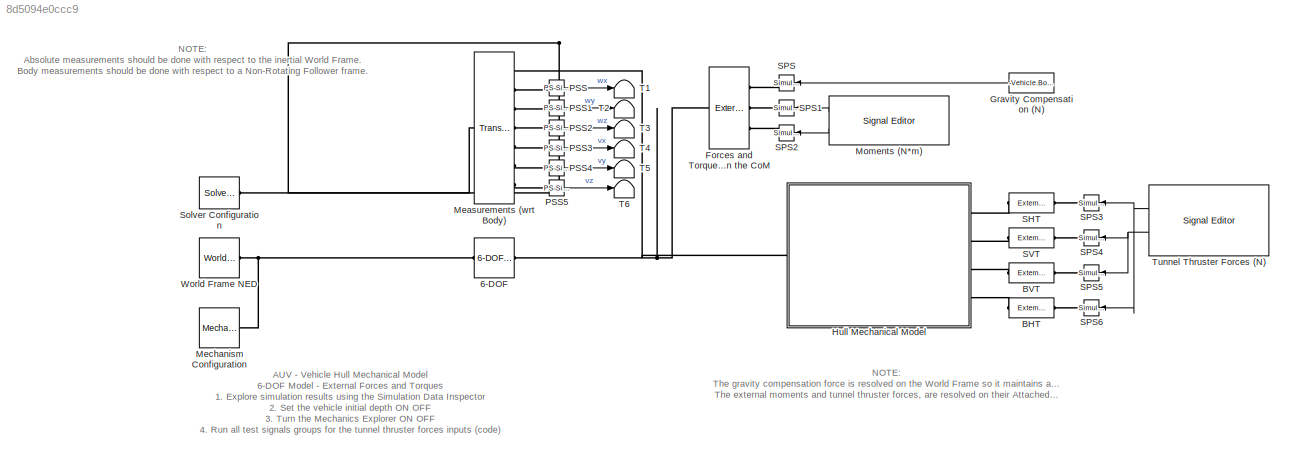
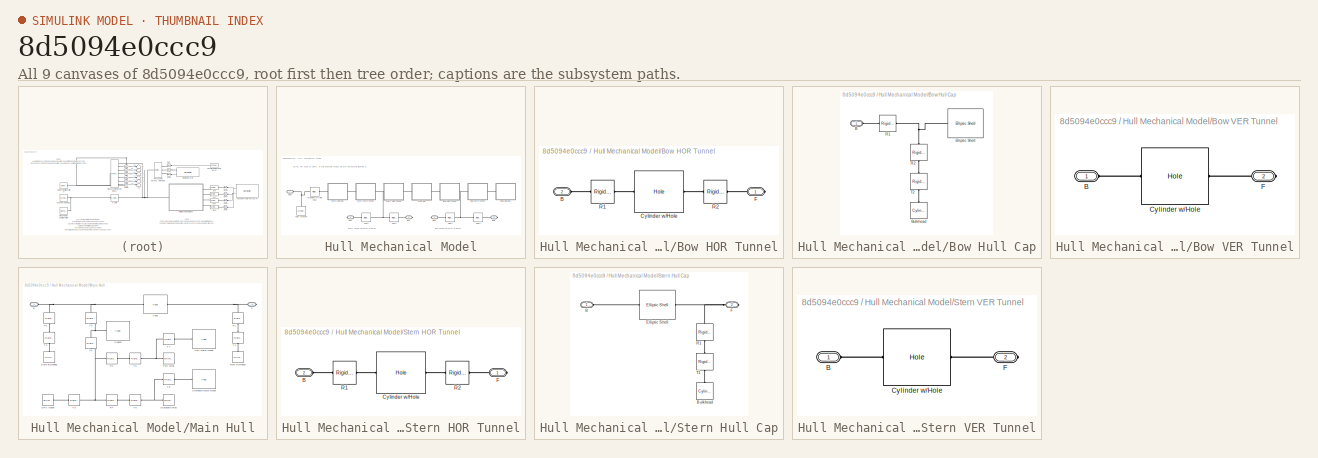
[diagram: thumbnail index - all 9 canvases of the model, root first then tree order]
MODEL slx_8d5094e0ccc9
KIND model
CONFIG AbsTol = auto
CONFIG EnableMultiTasking = on
CONFIG FixedStep = auto
CONFIG MaxStep = 0.01
CONFIG MinStep = auto
CONFIG PreLoadFcn = AUV_VehicleParameters;
CONFIG RelTol = 1e-3
CONFIG SampleTimeConstraint = Unconstrained
CONFIG Solver = ode23t
CONFIG SolverName = ode23t
CONFIG StartTime = 0.0
CONFIG StopTime = 20
BLOCK [Reference] 6-DOF  REF=sm_lib/Joints/6-DOF Joint
  AttributesFormatString = Initial Depth: %<PzPositionTargetSpecify>
  Ports = [0, 0, 0, 0, 0, 1, 1]
  SourceBlock = sm_lib/Joints/6-DOF Joint
  SourceProductBaseCode = MS
  SourceType = 6-DOF Joint
BLOCK [Reference] BHT  REF=sm_lib/Forces and
Torques/External Force
and Torque
  Ports = [0, 0, 0, 0, 0, 1, 1]
  SourceBlock = sm_lib/Forces and\nTorques/External Force\nand Torque
  SourceProductBaseCode = MS
  SourceType = External Force\nand Torque
BLOCK [Reference] BVT  REF=sm_lib/Forces and
Torques/External Force
and Torque
  Ports = [0, 0, 0, 0, 0, 1, 1]
  SourceBlock = sm_lib/Forces and\nTorques/External Force\nand Torque
  SourceProductBaseCode = MS
  SourceType = External Force\nand Torque
BLOCK [Reference] Forces and Torques on the CoM  REF=sm_lib/Forces and
Torques/External Force
and Torque
  Ports = [0, 0, 0, 0, 0, 3, 1]
  SourceBlock = sm_lib/Forces and\nTorques/External Force\nand Torque
  SourceProductBaseCode = MS
  SourceType = External Force\nand Torque
BLOCK [Constant] Gravity Compensation (N)
  Value = -Vehicle.Body.Hull.mass*Environment.gravity
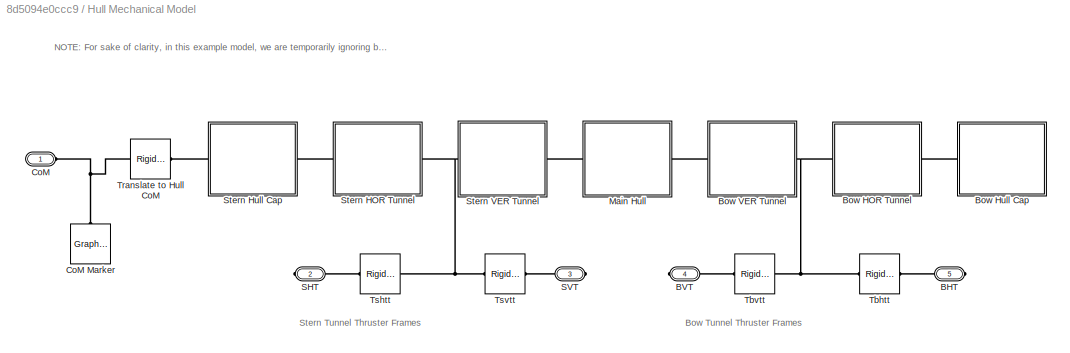
BLOCK [SubSystem] Hull Mechanical Model
  Ports = [0, 0, 0, 0, 0, 1, 4]
  RequestExecContextInheritance = off
BLOCK [PMIOPort] Hull Mechanical Model/BHT
  Port = 5
  Side = Right
BLOCK [PMIOPort] Hull Mechanical Model/BVT
  Port = 4
  Side = Right
BLOCK [SubSystem] Hull Mechanical Model/Bow HOR Tunnel
  Ports = [0, 0, 0, 0, 0, 1, 1]
  RequestExecContextInheritance = off
BLOCK [PMIOPort] Hull Mechanical Model/Bow HOR Tunnel/B
  Port = 2
  Side = Left
BLOCK [Reference] Hull Mechanical Model/Bow HOR Tunnel/Cylinder w//Hole  REF=AUVCustomPrimitives_Lib/Cylinder w//Hole
  Ports = [0, 0, 0, 0, 0, 1, 1]
  SourceBlock = AUVCustomPrimitives_Lib/Cylinder w//Hole
  SourceType = Cylinder with Hole
BLOCK [PMIOPort] Hull Mechanical Model/Bow HOR Tunnel/F
  Side = Right
BLOCK [Reference] Hull Mechanical Model/Bow HOR Tunnel/R1  REF=sm_lib/Frames and
Transforms/Rigid
Transform
  Ports = [0, 0, 0, 0, 0, 1, 1]
  SourceBlock = sm_lib/Frames and\nTransforms/Rigid\nTransform
  SourceProductBaseCode = MS
  SourceType = Rigid\nTransform
BLOCK [Reference] Hull Mechanical Model/Bow HOR Tunnel/R2  REF=sm_lib/Frames and
Transforms/Rigid
Transform
  Ports = [0, 0, 0, 0, 0, 1, 1]
  SourceBlock = sm_lib/Frames and\nTransforms/Rigid\nTransform
  SourceProductBaseCode = MS
  SourceType = Rigid\nTransform
BLOCK [SubSystem] Hull Mechanical Model/Bow Hull Cap
  Ports = [0, 0, 0, 0, 0, 1]
  RequestExecContextInheritance = off
BLOCK [PMIOPort] Hull Mechanical Model/Bow Hull Cap/B
  Side = Left
BLOCK [Reference] Hull Mechanical Model/Bow Hull Cap/Bulkhead  REF=sm_lib/Body Elements/Cylindrical Solid
  NameLocation = right
  Ports = [0, 0, 0, 0, 0, 0, 1]
  SourceBlock = sm_lib/Body Elements/Cylindrical Solid
  SourceProductBaseCode = MS
  SourceType = Cylindrical Solid
BLOCK [Reference] Hull Mechanical Model/Bow Hull Cap/Elliptic Shell  REF=AUVCustomPrimitives_Lib/Elliptic Shell
  Ports = [0, 0, 0, 0, 0, 1, 1]
  SourceBlock = AUVCustomPrimitives_Lib/Elliptic Shell
  SourceType = Elliptic Shell
BLOCK [Reference] Hull Mechanical Model/Bow Hull Cap/R1  REF=sm_lib/Frames and
Transforms/Rigid
Transform
  Ports = [0, 0, 0, 0, 0, 1, 1]
  SourceBlock = sm_lib/Frames and\nTransforms/Rigid\nTransform
  SourceProductBaseCode = MS
  SourceType = Rigid\nTransform
BLOCK [Reference] Hull Mechanical Model/Bow Hull Cap/R2  REF=sm_lib/Frames and
Transforms/Rigid
Transform
  NameLocation = right
  Ports = [0, 0, 0, 0, 0, 1, 1]
  SourceBlock = sm_lib/Frames and\nTransforms/Rigid\nTransform
  SourceProductBaseCode = MS
  SourceType = Rigid\nTransform
BLOCK [Reference] Hull Mechanical Model/Bow Hull Cap/T2  REF=sm_lib/Frames and
Transforms/Rigid
Transform
  NameLocation = right
  Ports = [0, 0, 0, 0, 0, 1, 1]
  SourceBlock = sm_lib/Frames and\nTransforms/Rigid\nTransform
  SourceProductBaseCode = MS
  SourceType = Rigid\nTransform
BLOCK [SubSystem] Hull Mechanical Model/Bow VER Tunnel
  Ports = [0, 0, 0, 0, 0, 1, 1]
  RequestExecContextInheritance = off
BLOCK [PMIOPort] Hull Mechanical Model/Bow VER Tunnel/B
  Side = Left
BLOCK [Reference] Hull Mechanical Model/Bow VER Tunnel/Cylinder w//Hole  REF=AUVCustomPrimitives_Lib/Cylinder w//Hole
  Ports = [0, 0, 0, 0, 0, 1, 1]
  SourceBlock = AUVCustomPrimitives_Lib/Cylinder w//Hole
  SourceType = Cylinder with Hole
BLOCK [PMIOPort] Hull Mechanical Model/Bow VER Tunnel/F
  Port = 2
  Side = Right
BLOCK [PMIOPort] Hull Mechanical Model/CoM
  Side = Left
BLOCK [Reference] Hull Mechanical Model/CoM Marker  REF=sm_lib/Body Elements/Graphic
  NameLocation = right
  Ports = [0, 0, 0, 0, 0, 0, 1]
  SourceBlock = sm_lib/Body Elements/Graphic
  SourceProductBaseCode = MS
  SourceType = Graphic
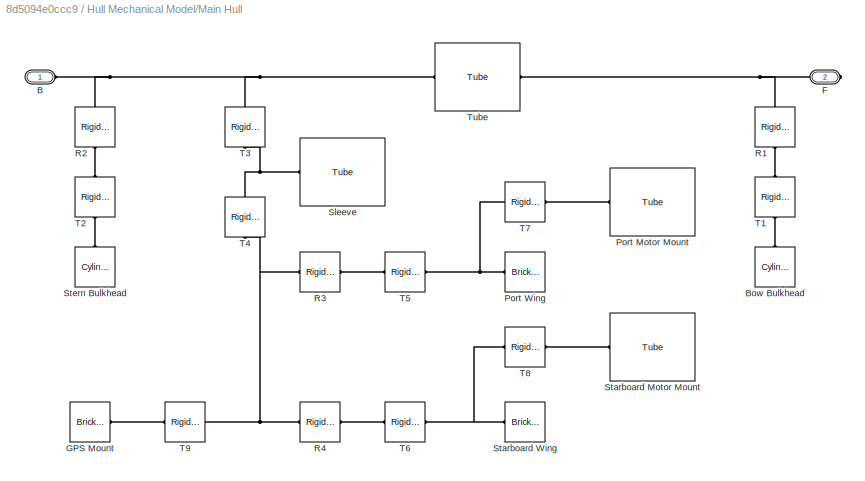
BLOCK [SubSystem] Hull Mechanical Model/Main Hull
  Ports = [0, 0, 0, 0, 0, 1, 1]
  RequestExecContextInheritance = off
BLOCK [PMIOPort] Hull Mechanical Model/Main Hull/B
  Side = Left
BLOCK [Reference] Hull Mechanical Model/Main Hull/Bow Bulkhead  REF=sm_lib/Body Elements/Cylindrical Solid
  NameLocation = right
  Ports = [0, 0, 0, 0, 0, 0, 1]
  SourceBlock = sm_lib/Body Elements/Cylindrical Solid
  SourceProductBaseCode = MS
  SourceType = Cylindrical Solid
BLOCK [PMIOPort] Hull Mechanical Model/Main Hull/F
  Port = 2
  Side = Right
BLOCK [Reference] Hull Mechanical Model/Main Hull/GPS Mount  REF=sm_lib/Body Elements/Brick Solid
  Ports = [0, 0, 0, 0, 0, 0, 1]
  SourceBlock = sm_lib/Body Elements/Brick Solid
  SourceProductBaseCode = MS
  SourceType = Brick Solid
BLOCK [Reference] Hull Mechanical Model/Main Hull/Port Motor Mount  REF=AUVCustomPrimitives_Lib/Tube
  Ports = [0, 0, 0, 0, 0, 1, 1]
  SourceBlock = AUVCustomPrimitives_Lib/Tube
  SourceType = Tube
BLOCK [Reference] Hull Mechanical Model/Main Hull/Port Wing  REF=sm_lib/Body Elements/Brick Solid
  Ports = [0, 0, 0, 0, 0, 0, 1]
  SourceBlock = sm_lib/Body Elements/Brick Solid
  SourceProductBaseCode = MS
  SourceType = Brick Solid
BLOCK [Reference] Hull Mechanical Model/Main Hull/R1  REF=sm_lib/Frames and
Transforms/Rigid
Transform
  NameLocation = right
  Ports = [0, 0, 0, 0, 0, 1, 1]
  SourceBlock = sm_lib/Frames and\nTransforms/Rigid\nTransform
  SourceProductBaseCode = MS
  SourceType = Rigid\nTransform
BLOCK [Reference] Hull Mechanical Model/Main Hull/R2  REF=sm_lib/Frames and
Transforms/Rigid
Transform
  NameLocation = right
  Ports = [0, 0, 0, 0, 0, 1, 1]
  SourceBlock = sm_lib/Frames and\nTransforms/Rigid\nTransform
  SourceProductBaseCode = MS
  SourceType = Rigid\nTransform
BLOCK [Reference] Hull Mechanical Model/Main Hull/R3  REF=sm_lib/Frames and
Transforms/Rigid
Transform
  Ports = [0, 0, 0, 0, 0, 1, 1]
  SourceBlock = sm_lib/Frames and\nTransforms/Rigid\nTransform
  SourceProductBaseCode = MS
  SourceType = Rigid\nTransform
BLOCK [Reference] Hull Mechanical Model/Main Hull/R4  REF=sm_lib/Frames and
Transforms/Rigid
Transform
  Ports = [0, 0, 0, 0, 0, 1, 1]
  SourceBlock = sm_lib/Frames and\nTransforms/Rigid\nTransform
  SourceProductBaseCode = MS
  SourceType = Rigid\nTransform
BLOCK [Reference] Hull Mechanical Model/Main Hull/Sleeve  REF=AUVCustomPrimitives_Lib/Tube
  Ports = [0, 0, 0, 0, 0, 1, 1]
  SourceBlock = AUVCustomPrimitives_Lib/Tube
  SourceType = Tube
BLOCK [Reference] Hull Mechanical Model/Main Hull/Starboard Motor Mount  REF=AUVCustomPrimitives_Lib/Tube
  Ports = [0, 0, 0, 0, 0, 1, 1]
  SourceBlock = AUVCustomPrimitives_Lib/Tube
  SourceType = Tube
BLOCK [Reference] Hull Mechanical Model/Main Hull/Starboard Wing  REF=sm_lib/Body Elements/Brick Solid
  Ports = [0, 0, 0, 0, 0, 0, 1]
  SourceBlock = sm_lib/Body Elements/Brick Solid
  SourceProductBaseCode = MS
  SourceType = Brick Solid
BLOCK [Reference] Hull Mechanical Model/Main Hull/Stern Bulkhead  REF=sm_lib/Body Elements/Cylindrical Solid
  NameLocation = right
  Ports = [0, 0, 0, 0, 0, 0, 1]
  SourceBlock = sm_lib/Body Elements/Cylindrical Solid
  SourceProductBaseCode = MS
  SourceType = Cylindrical Solid
BLOCK [Reference] Hull Mechanical Model/Main Hull/T1  REF=sm_lib/Frames and
Transforms/Rigid
Transform
  NameLocation = right
  Ports = [0, 0, 0, 0, 0, 1, 1]
  SourceBlock = sm_lib/Frames and\nTransforms/Rigid\nTransform
  SourceProductBaseCode = MS
  SourceType = Rigid\nTransform
BLOCK [Reference] Hull Mechanical Model/Main Hull/T2  REF=sm_lib/Frames and
Transforms/Rigid
Transform
  NameLocation = right
  Ports = [0, 0, 0, 0, 0, 1, 1]
  SourceBlock = sm_lib/Frames and\nTransforms/Rigid\nTransform
  SourceProductBaseCode = MS
  SourceType = Rigid\nTransform
BLOCK [Reference] Hull Mechanical Model/Main Hull/T3  REF=sm_lib/Frames and
Transforms/Rigid
Transform
  NameLocation = left
  Ports = [0, 0, 0, 0, 0, 1, 1]
  SourceBlock = sm_lib/Frames and\nTransforms/Rigid\nTransform
  SourceProductBaseCode = MS
  SourceType = Rigid\nTransform
BLOCK [Reference] Hull Mechanical Model/Main Hull/T4  REF=sm_lib/Frames and
Transforms/Rigid
Transform
  NameLocation = left
  Ports = [0, 0, 0, 0, 0, 1, 1]
  SourceBlock = sm_lib/Frames and\nTransforms/Rigid\nTransform
  SourceProductBaseCode = MS
  SourceType = Rigid\nTransform
BLOCK [Reference] Hull Mechanical Model/Main Hull/T5  REF=sm_lib/Frames and
Transforms/Rigid
Transform
  Ports = [0, 0, 0, 0, 0, 1, 1]
  SourceBlock = sm_lib/Frames and\nTransforms/Rigid\nTransform
  SourceProductBaseCode = MS
  SourceType = Rigid\nTransform
BLOCK [Reference] Hull Mechanical Model/Main Hull/T6  REF=sm_lib/Frames and
Transforms/Rigid
Transform
  Ports = [0, 0, 0, 0, 0, 1, 1]
  SourceBlock = sm_lib/Frames and\nTransforms/Rigid\nTransform
  SourceProductBaseCode = MS
  SourceType = Rigid\nTransform
BLOCK [Reference] Hull Mechanical Model/Main Hull/T7  REF=sm_lib/Frames and
Transforms/Rigid
Transform
  Ports = [0, 0, 0, 0, 0, 1, 1]
  SourceBlock = sm_lib/Frames and\nTransforms/Rigid\nTransform
  SourceProductBaseCode = MS
  SourceType = Rigid\nTransform
BLOCK [Reference] Hull Mechanical Model/Main Hull/T8  REF=sm_lib/Frames and
Transforms/Rigid
Transform
  Ports = [0, 0, 0, 0, 0, 1, 1]
  SourceBlock = sm_lib/Frames and\nTransforms/Rigid\nTransform
  SourceProductBaseCode = MS
  SourceType = Rigid\nTransform
BLOCK [Reference] Hull Mechanical Model/Main Hull/T9  REF=sm_lib/Frames and
Transforms/Rigid
Transform
  Ports = [0, 0, 0, 0, 0, 1, 1]
  SourceBlock = sm_lib/Frames and\nTransforms/Rigid\nTransform
  SourceProductBaseCode = MS
  SourceType = Rigid\nTransform
BLOCK [Reference] Hull Mechanical Model/Main Hull/Tube  REF=AUVCustomPrimitives_Lib/Tube
  Ports = [0, 0, 0, 0, 0, 1, 1]
  SourceBlock = AUVCustomPrimitives_Lib/Tube
  SourceType = Tube
BLOCK [PMIOPort] Hull Mechanical Model/SHT
  Port = 2
  Side = Right
BLOCK [PMIOPort] Hull Mechanical Model/SVT
  Port = 3
  Side = Right
BLOCK [SubSystem] Hull Mechanical Model/Stern HOR Tunnel
  Ports = [0, 0, 0, 0, 0, 1, 1]
  RequestExecContextInheritance = off
BLOCK [PMIOPort] Hull Mechanical Model/Stern HOR Tunnel/B
  Port = 2
  Side = Left
BLOCK [Reference] Hull Mechanical Model/Stern HOR Tunnel/Cylinder w//Hole  REF=AUVCustomPrimitives_Lib/Cylinder w//Hole
  Ports = [0, 0, 0, 0, 0, 1, 1]
  SourceBlock = AUVCustomPrimitives_Lib/Cylinder w//Hole
  SourceType = Cylinder with Hole
BLOCK [PMIOPort] Hull Mechanical Model/Stern HOR Tunnel/F
  Side = Right
BLOCK [Reference] Hull Mechanical Model/Stern HOR Tunnel/R1  REF=sm_lib/Frames and
Transforms/Rigid
Transform
  Ports = [0, 0, 0, 0, 0, 1, 1]
  SourceBlock = sm_lib/Frames and\nTransforms/Rigid\nTransform
  SourceProductBaseCode = MS
  SourceType = Rigid\nTransform
BLOCK [Reference] Hull Mechanical Model/Stern HOR Tunnel/R2  REF=sm_lib/Frames and
Transforms/Rigid
Transform
  Ports = [0, 0, 0, 0, 0, 1, 1]
  SourceBlock = sm_lib/Frames and\nTransforms/Rigid\nTransform
  SourceProductBaseCode = MS
  SourceType = Rigid\nTransform
BLOCK [SubSystem] Hull Mechanical Model/Stern Hull Cap
  Ports = [0, 0, 0, 0, 0, 1, 1]
  RequestExecContextInheritance = off
BLOCK [PMIOPort] Hull Mechanical Model/Stern Hull Cap/B
  Side = Left
BLOCK [Reference] Hull Mechanical Model/Stern Hull Cap/Bulkhead  REF=sm_lib/Body Elements/Cylindrical Solid
  NameLocation = right
  Ports = [0, 0, 0, 0, 0, 0, 1]
  SourceBlock = sm_lib/Body Elements/Cylindrical Solid
  SourceProductBaseCode = MS
  SourceType = Cylindrical Solid
BLOCK [Reference] Hull Mechanical Model/Stern Hull Cap/Elliptic Shell  REF=AUVCustomPrimitives_Lib/Elliptic Shell
  Ports = [0, 0, 0, 0, 0, 1, 1]
  SourceBlock = AUVCustomPrimitives_Lib/Elliptic Shell
  SourceType = Elliptic Shell
BLOCK [PMIOPort] Hull Mechanical Model/Stern Hull Cap/F
  Port = 2
  Side = Right
BLOCK [Reference] Hull Mechanical Model/Stern Hull Cap/R1  REF=sm_lib/Frames and
Transforms/Rigid
Transform
  NameLocation = right
  Ports = [0, 0, 0, 0, 0, 1, 1]
  SourceBlock = sm_lib/Frames and\nTransforms/Rigid\nTransform
  SourceProductBaseCode = MS
  SourceType = Rigid\nTransform
BLOCK [Reference] Hull Mechanical Model/Stern Hull Cap/T1  REF=sm_lib/Frames and
Transforms/Rigid
Transform
  NameLocation = right
  Ports = [0, 0, 0, 0, 0, 1, 1]
  SourceBlock = sm_lib/Frames and\nTransforms/Rigid\nTransform
  SourceProductBaseCode = MS
  SourceType = Rigid\nTransform
BLOCK [SubSystem] Hull Mechanical Model/Stern VER Tunnel
  Ports = [0, 0, 0, 0, 0, 1, 1]
  RequestExecContextInheritance = off
BLOCK [PMIOPort] Hull Mechanical Model/Stern VER Tunnel/B
  Side = Left
BLOCK [Reference] Hull Mechanical Model/Stern VER Tunnel/Cylinder w//Hole  REF=AUVCustomPrimitives_Lib/Cylinder w//Hole
  Ports = [0, 0, 0, 0, 0, 1, 1]
  SourceBlock = AUVCustomPrimitives_Lib/Cylinder w//Hole
  SourceType = Cylinder with Hole
BLOCK [PMIOPort] Hull Mechanical Model/Stern VER Tunnel/F
  Port = 2
  Side = Right
BLOCK [Reference] Hull Mechanical Model/Tbhtt  REF=sm_lib/Frames and
Transforms/Rigid
Transform
  Ports = [0, 0, 0, 0, 0, 1, 1]
  SourceBlock = sm_lib/Frames and\nTransforms/Rigid\nTransform
  SourceProductBaseCode = MS
  SourceType = Rigid\nTransform
BLOCK [Reference] Hull Mechanical Model/Tbvtt  REF=sm_lib/Frames and
Transforms/Rigid
Transform
  Ports = [0, 0, 0, 0, 0, 1, 1]
  SourceBlock = sm_lib/Frames and\nTransforms/Rigid\nTransform
  SourceProductBaseCode = MS
  SourceType = Rigid\nTransform
BLOCK [Reference] Hull Mechanical Model/Translate to Hull CoM  REF=sm_lib/Frames and
Transforms/Rigid
Transform
  Ports = [0, 0, 0, 0, 0, 1, 1]
  SourceBlock = sm_lib/Frames and\nTransforms/Rigid\nTransform
  SourceProductBaseCode = MS
  SourceType = Rigid\nTransform
BLOCK [Reference] Hull Mechanical Model/Tshtt  REF=sm_lib/Frames and
Transforms/Rigid
Transform
  Ports = [0, 0, 0, 0, 0, 1, 1]
  SourceBlock = sm_lib/Frames and\nTransforms/Rigid\nTransform
  SourceProductBaseCode = MS
  SourceType = Rigid\nTransform
BLOCK [Reference] Hull Mechanical Model/Tsvtt  REF=sm_lib/Frames and
Transforms/Rigid
Transform
  Ports = [0, 0, 0, 0, 0, 1, 1]
  SourceBlock = sm_lib/Frames and\nTransforms/Rigid\nTransform
  SourceProductBaseCode = MS
  SourceType = Rigid\nTransform
BLOCK [Reference] Measurements (wrt Body)  REF=sm_lib/Frames and
Transforms/Transform
Sensor
  Ports = [0, 0, 0, 0, 0, 1, 7]
  SourceBlock = sm_lib/Frames and\nTransforms/Transform\nSensor
  SourceProductBaseCode = MS
  SourceType = Transform\nSensor
BLOCK [Reference] Mechanism Configuration  REF=sm_lib/Utilities/Mechanism
Configuration
  Ports = [0, 0, 0, 0, 0, 0, 1]
  SourceBlock = sm_lib/Utilities/Mechanism\nConfiguration
  SourceProductBaseCode = MS
  SourceType = Mechanism\nConfiguration
BLOCK [Reference] Moments (N*m)  REF=SignalEditorBlockLib/Signal Editor
  Commented = on
  Ports = [0, 2]
  SourceBlock = SignalEditorBlockLib/Signal Editor
  SourceProductBaseCode = SL
  SourceType = SignalEditor
  UserDataPersistent = on
BLOCK [Reference] PSS  REF=nesl_utility/PS-Simulink
Converter
  Ports = [0, 1, 0, 0, 0, 1]
  SourceBlock = nesl_utility/PS-Simulink\nConverter
  SourceProductBaseCode = SS
  SourceType = PS-Simulink\nConverter
BLOCK [Reference] PSS1  REF=nesl_utility/PS-Simulink
Converter
  Ports = [0, 1, 0, 0, 0, 1]
  SourceBlock = nesl_utility/PS-Simulink\nConverter
  SourceProductBaseCode = SS
  SourceType = PS-Simulink\nConverter
BLOCK [Reference] PSS2  REF=nesl_utility/PS-Simulink
Converter
  Ports = [0, 1, 0, 0, 0, 1]
  SourceBlock = nesl_utility/PS-Simulink\nConverter
  SourceProductBaseCode = SS
  SourceType = PS-Simulink\nConverter
BLOCK [Reference] PSS3  REF=nesl_utility/PS-Simulink
Converter
  Ports = [0, 1, 0, 0, 0, 1]
  SourceBlock = nesl_utility/PS-Simulink\nConverter
  SourceProductBaseCode = SS
  SourceType = PS-Simulink\nConverter
BLOCK [Reference] PSS4  REF=nesl_utility/PS-Simulink
Converter
  Ports = [0, 1, 0, 0, 0, 1]
  SourceBlock = nesl_utility/PS-Simulink\nConverter
  SourceProductBaseCode = SS
  SourceType = PS-Simulink\nConverter
BLOCK [Reference] PSS5  REF=nesl_utility/PS-Simulink
Converter
  Ports = [0, 1, 0, 0, 0, 1]
  SourceBlock = nesl_utility/PS-Simulink\nConverter
  SourceProductBaseCode = SS
  SourceType = PS-Simulink\nConverter
BLOCK [Reference] SHT  REF=sm_lib/Forces and
Torques/External Force
and Torque
  Ports = [0, 0, 0, 0, 0, 1, 1]
  SourceBlock = sm_lib/Forces and\nTorques/External Force\nand Torque
  SourceProductBaseCode = MS
  SourceType = External Force\nand Torque
BLOCK [Reference] SPS  REF=nesl_utility/Simulink-PS
Converter
  Ports = [1, 0, 0, 0, 0, 0, 1]
  SourceBlock = nesl_utility/Simulink-PS\nConverter
  SourceProductBaseCode = SS
  SourceType = Simulink-PS\nConverter
BLOCK [Reference] SPS1  REF=nesl_utility/Simulink-PS
Converter
  Ports = [1, 0, 0, 0, 0, 0, 1]
  SourceBlock = nesl_utility/Simulink-PS\nConverter
  SourceProductBaseCode = SS
  SourceType = Simulink-PS\nConverter
BLOCK [Reference] SPS2  REF=nesl_utility/Simulink-PS
Converter
  Ports = [1, 0, 0, 0, 0, 0, 1]
  SourceBlock = nesl_utility/Simulink-PS\nConverter
  SourceProductBaseCode = SS
  SourceType = Simulink-PS\nConverter
BLOCK [Reference] SPS3  REF=nesl_utility/Simulink-PS
Converter
  Ports = [1, 0, 0, 0, 0, 0, 1]
  SourceBlock = nesl_utility/Simulink-PS\nConverter
  SourceProductBaseCode = SS
  SourceType = Simulink-PS\nConverter
BLOCK [Reference] SPS4  REF=nesl_utility/Simulink-PS
Converter
  Ports = [1, 0, 0, 0, 0, 0, 1]
  SourceBlock = nesl_utility/Simulink-PS\nConverter
  SourceProductBaseCode = SS
  SourceType = Simulink-PS\nConverter
BLOCK [Reference] SPS5  REF=nesl_utility/Simulink-PS
Converter
  Ports = [1, 0, 0, 0, 0, 0, 1]
  SourceBlock = nesl_utility/Simulink-PS\nConverter
  SourceProductBaseCode = SS
  SourceType = Simulink-PS\nConverter
BLOCK [Reference] SPS6  REF=nesl_utility/Simulink-PS
Converter
  Ports = [1, 0, 0, 0, 0, 0, 1]
  SourceBlock = nesl_utility/Simulink-PS\nConverter
  SourceProductBaseCode = SS
  SourceType = Simulink-PS\nConverter
BLOCK [Reference] SVT  REF=sm_lib/Forces and
Torques/External Force
and Torque
  Ports = [0, 0, 0, 0, 0, 1, 1]
  SourceBlock = sm_lib/Forces and\nTorques/External Force\nand Torque
  SourceProductBaseCode = MS
  SourceType = External Force\nand Torque
BLOCK [Reference] Solver Configuration  REF=nesl_utility/Solver
Configuration
  Ports = [0, 0, 0, 0, 0, 0, 1]
  SourceBlock = nesl_utility/Solver\nConfiguration
  SourceProductBaseCode = MT,SS
  SourceType = Solver\nConfiguration
BLOCK [Terminator] T1
BLOCK [Terminator] T2
BLOCK [Terminator] T3
BLOCK [Terminator] T4
BLOCK [Terminator] T5
BLOCK [Terminator] T6
BLOCK [Reference] Tunnel Thruster Forces (N)  REF=SignalEditorBlockLib/Signal Editor
  Commented = on
  Ports = [0, 2]
  SourceBlock = SignalEditorBlockLib/Signal Editor
  SourceProductBaseCode = SL
  SourceType = SignalEditor
  UserDataPersistent = on
BLOCK [Reference] World Frame NED  REF=sm_lib/Frames and
Transforms/World Frame
  Ports = [0, 0, 0, 0, 0, 0, 1]
  SourceBlock = sm_lib/Frames and\nTransforms/World Frame
  SourceProductBaseCode = MS
  SourceType = World Frame
ANNOTATION (root): NOTE: Absolute measurements should be done with respect to the inertial World Frame . Body measurements should be done with respect to a Non-Rotating Follower frame.
ANNOTATION (root): NOTE: The gravity compensation force is resolved on the World Frame so it maintains a vertical direction at all times, even when the vehicle rotates. The external moments and tunnel thruster forces, are resolved on their Attached Frame(s) , so they will act on the corresponding axis of those frames at all times regardless of body orientation.
ANNOTATION (root): AUV - Vehicle Hull Mechanical Model 6-DOF Model - External Forces and Torques 1. Explore simulation results using the Simulation Data Inspector 2. Set the vehicle initial depth ON OFF 3. Turn the Mechanics Explorer ON OFF 4. Run all test signals groups for the tunnel thruster forces inputs ( code ) 5. Run all test signals groups for the pitch and yaw moments on the CoM ( code )
ANNOTATION Hull Mechanical Model: Bow Tunnel Thruster Frames
ANNOTATION Hull Mechanical Model: Stern Tunnel Thruster Frames
ANNOTATION Hull Mechanical Model: NOTE: For sake of clarity, in this example model, we are temporarily ignoring buoyancy effects.
LINE Gravity Compensation (N):1 -> SPS:1
LINE Moments (N*m):1 -> SPS1:1
LINE Moments (N*m):2 -> SPS2:1
LINE PSS1:1 -> T2:1
LINE PSS2:1 -> T3:1
LINE PSS3:1 -> T4:1
LINE PSS4:1 -> T5:1
LINE PSS5:1 -> T6:1
LINE PSS:1 -> T1:1
NET Tunnel Thruster Forces (N):1 -> SPS3:1, SPS6:1
NET Tunnel Thruster Forces (N):2 -> SPS4:1, SPS5:1
PNET net1: 6-DOF:LConn1 -- Measurements (wrt Body):LConn1 -- Mechanism Configuration:RConn1 -- Solver Configuration:RConn1 -- World Frame NED:RConn1
PNET net2: 6-DOF:RConn1 -- Forces and Torques on the CoM:RConn1 -- Hull Mechanical Model:LConn1 -- Measurements (wrt Body):RConn1
PLINE BHT:LConn1 -- SPS6:RConn1
PLINE BHT:RConn1 -- Hull Mechanical Model:RConn4
PLINE BVT:LConn1 -- SPS5:RConn1
PLINE BVT:RConn1 -- Hull Mechanical Model:RConn3
PLINE Forces and Torques on the CoM:LConn1 -- SPS:RConn1
PLINE Forces and Torques on the CoM:LConn2 -- SPS1:RConn1
PLINE Forces and Torques on the CoM:LConn3 -- SPS2:RConn1
PLINE Hull Mechanical Model/BHT:RConn1 -- Hull Mechanical Model/Tbhtt:RConn1
PLINE Hull Mechanical Model/BVT:RConn1 -- Hull Mechanical Model/Tbvtt:LConn1
PLINE Hull Mechanical Model/Bow HOR Tunnel/B:RConn1 -- Hull Mechanical Model/Bow HOR Tunnel/R1:LConn1
PLINE Hull Mechanical Model/Bow HOR Tunnel/Cylinder w//Hole:LConn1 -- Hull Mechanical Model/Bow HOR Tunnel/R1:RConn1
PLINE Hull Mechanical Model/Bow HOR Tunnel/Cylinder w//Hole:RConn1 -- Hull Mechanical Model/Bow HOR Tunnel/R2:LConn1
PLINE Hull Mechanical Model/Bow HOR Tunnel/F:RConn1 -- Hull Mechanical Model/Bow HOR Tunnel/R2:RConn1
PNET net3: Hull Mechanical Model/Bow HOR Tunnel:LConn1 -- Hull Mechanical Model/Bow VER Tunnel:RConn1 -- Hull Mechanical Model/Tbhtt:LConn1 -- Hull Mechanical Model/Tbvtt:RConn1
PLINE Hull Mechanical Model/Bow HOR Tunnel:RConn1 -- Hull Mechanical Model/Bow Hull Cap:LConn1
PLINE Hull Mechanical Model/Bow Hull Cap/B:RConn1 -- Hull Mechanical Model/Bow Hull Cap/R1:LConn1
PLINE Hull Mechanical Model/Bow Hull Cap/Bulkhead:RConn1 -- Hull Mechanical Model/Bow Hull Cap/T2:RConn1
PNET net4: Hull Mechanical Model/Bow Hull Cap/Elliptic Shell:RConn1 -- Hull Mechanical Model/Bow Hull Cap/R1:RConn1 -- Hull Mechanical Model/Bow Hull Cap/R2:LConn1
PLINE Hull Mechanical Model/Bow Hull Cap/R2:RConn1 -- Hull Mechanical Model/Bow Hull Cap/T2:LConn1
PLINE Hull Mechanical Model/Bow VER Tunnel/B:RConn1 -- Hull Mechanical Model/Bow VER Tunnel/Cylinder w//Hole:LConn1
PLINE Hull Mechanical Model/Bow VER Tunnel/Cylinder w//Hole:RConn1 -- Hull Mechanical Model/Bow VER Tunnel/F:RConn1
PLINE Hull Mechanical Model/Bow VER Tunnel:LConn1 -- Hull Mechanical Model/Main Hull:RConn1
PNET net5: Hull Mechanical Model/CoM Marker:RConn1 -- Hull Mechanical Model/CoM:RConn1 -- Hull Mechanical Model/Translate to Hull CoM:RConn1
PNET net6: Hull Mechanical Model/Main Hull/B:RConn1 -- Hull Mechanical Model/Main Hull/R2:LConn1 -- Hull Mechanical Model/Main Hull/T3:LConn1 -- Hull Mechanical Model/Main Hull/Tube:LConn1
PLINE Hull Mechanical Model/Main Hull/Bow Bulkhead:RConn1 -- Hull Mechanical Model/Main Hull/T1:RConn1
PNET net7: Hull Mechanical Model/Main Hull/F:RConn1 -- Hull Mechanical Model/Main Hull/R1:LConn1 -- Hull Mechanical Model/Main Hull/Tube:RConn1
PLINE Hull Mechanical Model/Main Hull/GPS Mount:RConn1 -- Hull Mechanical Model/Main Hull/T9:RConn1
PLINE Hull Mechanical Model/Main Hull/Port Motor Mount:LConn1 -- Hull Mechanical Model/Main Hull/T7:RConn1
PNET net8: Hull Mechanical Model/Main Hull/Port Wing:RConn1 -- Hull Mechanical Model/Main Hull/T5:RConn1 -- Hull Mechanical Model/Main Hull/T7:LConn1
PLINE Hull Mechanical Model/Main Hull/R1:RConn1 -- Hull Mechanical Model/Main Hull/T1:LConn1
PLINE Hull Mechanical Model/Main Hull/R2:RConn1 -- Hull Mechanical Model/Main Hull/T2:LConn1
PNET net9: Hull Mechanical Model/Main Hull/R3:LConn1 -- Hull Mechanical Model/Main Hull/R4:LConn1 -- Hull Mechanical Model/Main Hull/T4:RConn1 -- Hull Mechanical Model/Main Hull/T9:LConn1
PLINE Hull Mechanical Model/Main Hull/R3:RConn1 -- Hull Mechanical Model/Main Hull/T5:LConn1
PLINE Hull Mechanical Model/Main Hull/R4:RConn1 -- Hull Mechanical Model/Main Hull/T6:LConn1
PNET net10: Hull Mechanical Model/Main Hull/Sleeve:LConn1 -- Hull Mechanical Model/Main Hull/T3:RConn1 -- Hull Mechanical Model/Main Hull/T4:LConn1
PLINE Hull Mechanical Model/Main Hull/Starboard Motor Mount:LConn1 -- Hull Mechanical Model/Main Hull/T8:RConn1
PNET net11: Hull Mechanical Model/Main Hull/Starboard Wing:RConn1 -- Hull Mechanical Model/Main Hull/T6:RConn1 -- Hull Mechanical Model/Main Hull/T8:LConn1
PLINE Hull Mechanical Model/Main Hull/Stern Bulkhead:RConn1 -- Hull Mechanical Model/Main Hull/T2:RConn1
PLINE Hull Mechanical Model/Main Hull:LConn1 -- Hull Mechanical Model/Stern VER Tunnel:RConn1
PLINE Hull Mechanical Model/SHT:RConn1 -- Hull Mechanical Model/Tshtt:LConn1
PLINE Hull Mechanical Model/SVT:RConn1 -- Hull Mechanical Model/Tsvtt:RConn1
PLINE Hull Mechanical Model/Stern HOR Tunnel/B:RConn1 -- Hull Mechanical Model/Stern HOR Tunnel/R1:LConn1
PLINE Hull Mechanical Model/Stern HOR Tunnel/Cylinder w//Hole:LConn1 -- Hull Mechanical Model/Stern HOR Tunnel/R1:RConn1
PLINE Hull Mechanical Model/Stern HOR Tunnel/Cylinder w//Hole:RConn1 -- Hull Mechanical Model/Stern HOR Tunnel/R2:LConn1
PLINE Hull Mechanical Model/Stern HOR Tunnel/F:RConn1 -- Hull Mechanical Model/Stern HOR Tunnel/R2:RConn1
PLINE Hull Mechanical Model/Stern HOR Tunnel:LConn1 -- Hull Mechanical Model/Stern Hull Cap:RConn1
PNET net12: Hull Mechanical Model/Stern HOR Tunnel:RConn1 -- Hull Mechanical Model/Stern VER Tunnel:LConn1 -- Hull Mechanical Model/Tshtt:RConn1 -- Hull Mechanical Model/Tsvtt:LConn1
PLINE Hull Mechanical Model/Stern Hull Cap/B:RConn1 -- Hull Mechanical Model/Stern Hull Cap/Elliptic Shell:LConn1
PLINE Hull Mechanical Model/Stern Hull Cap/Bulkhead:RConn1 -- Hull Mechanical Model/Stern Hull Cap/T1:RConn1
PNET net13: Hull Mechanical Model/Stern Hull Cap/Elliptic Shell:RConn1 -- Hull Mechanical Model/Stern Hull Cap/F:RConn1 -- Hull Mechanical Model/Stern Hull Cap/R1:LConn1
PLINE Hull Mechanical Model/Stern Hull Cap/R1:RConn1 -- Hull Mechanical Model/Stern Hull Cap/T1:LConn1
PLINE Hull Mechanical Model/Stern Hull Cap:LConn1 -- Hull Mechanical Model/Translate to Hull CoM:LConn1
PLINE Hull Mechanical Model/Stern VER Tunnel/B:RConn1 -- Hull Mechanical Model/Stern VER Tunnel/Cylinder w//Hole:LConn1
PLINE Hull Mechanical Model/Stern VER Tunnel/Cylinder w//Hole:RConn1 -- Hull Mechanical Model/Stern VER Tunnel/F:RConn1
PLINE Hull Mechanical Model:RConn1 -- SHT:RConn1
PLINE Hull Mechanical Model:RConn2 -- SVT:RConn1
PLINE Measurements (wrt Body):RConn2 -- PSS:LConn1
PLINE Measurements (wrt Body):RConn3 -- PSS1:LConn1
PLINE Measurements (wrt Body):RConn4 -- PSS2:LConn1
PLINE Measurements (wrt Body):RConn5 -- PSS3:LConn1
PLINE Measurements (wrt Body):RConn6 -- PSS4:LConn1
PLINE Measurements (wrt Body):RConn7 -- PSS5:LConn1
PLINE SHT:LConn1 -- SPS3:RConn1
PLINE SPS4:RConn1 -- SVT:LConn1
note: NET lines group one-source signal fan-out (src -> all destinations, sorted); 1:1 wires keep LINE; PNET lines group multi-terminal physical nets as a canonical sorted terminal list (undirected conserving connections); 2-terminal nets keep the pairwise PLINE form
